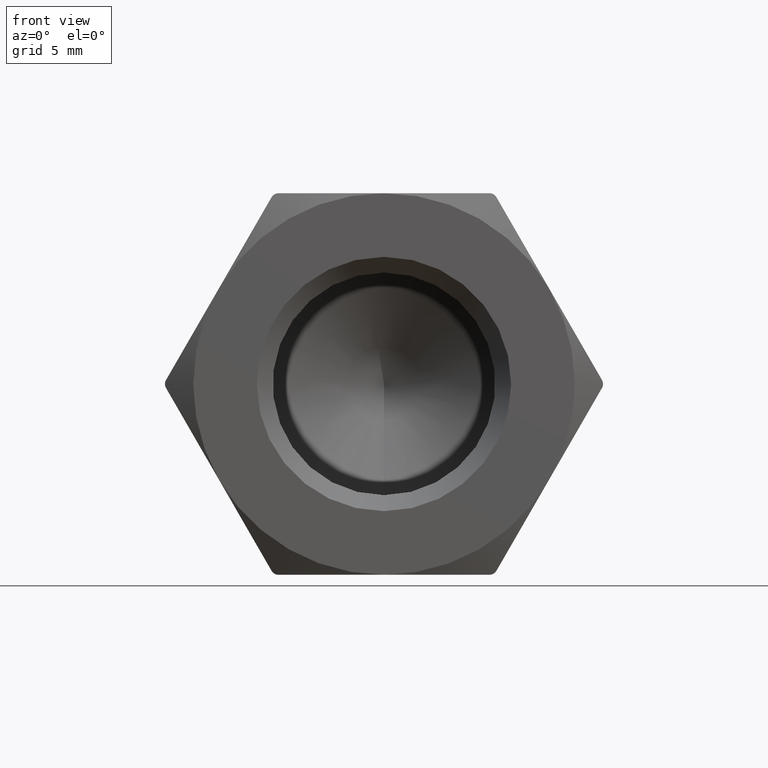
[diagram: clean part render]
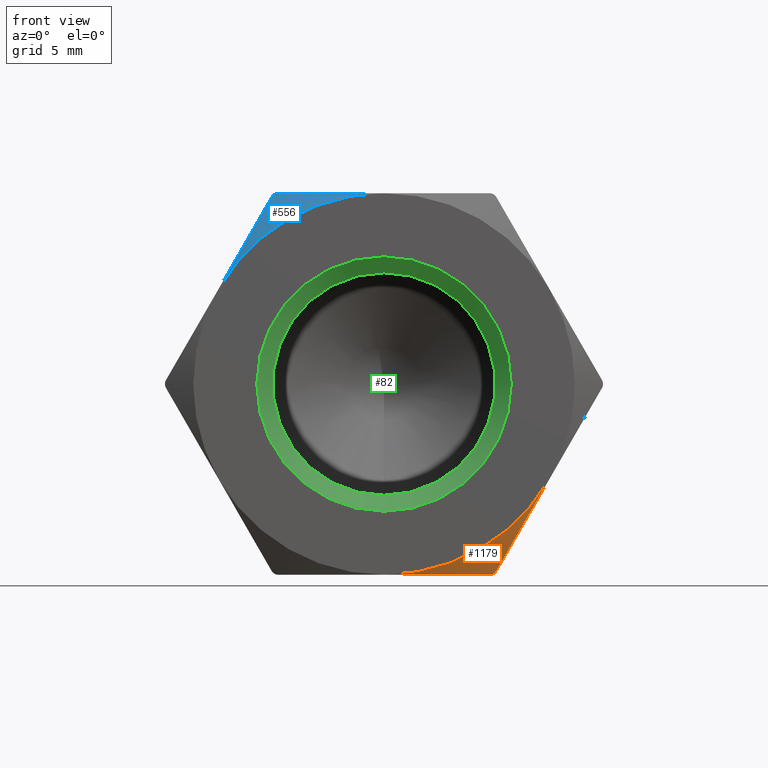
[diagram: same view with three faces highlighted in distinct colors, each labeled with its STEP entity id]
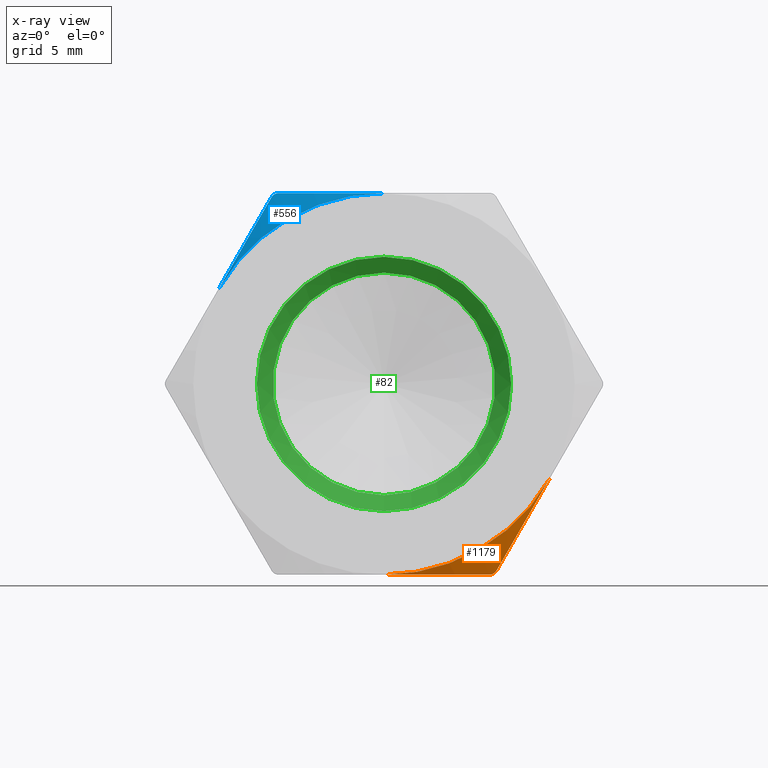
[diagram: x-ray of the same camera — body ghosted, the three highlighted faces saturated]
A machine part, front view with three faces highlighted in distinct colors.
The next image is the same camera in x-ray (body ghosted, the three faces saturated) — at least one of them is partly hidden behind the body in this view.
Their STEP definitions:

[orange] entity #1179 — the highlighted conical surface has half-angle 60 deg.
#12 = CARTESIAN_POINT ( 'NONE',  ( 5.564852187614549800, 0.6893936322554055100, -12.00000000000000500 ) ) ;
#78 = CIRCLE ( 'NONE', #233, 12.00000000000000200 ) ;
#83 = CARTESIAN_POINT ( 'NONE',  ( 7.615867869546742800, 0.6860455640991240900, -10.80892990621369200 ) ) ;
#130 = CARTESIAN_POINT ( 'NONE',  ( 7.072540797572896700, 0.9897791165376161900, -11.75000000000002100 ) ) ;
#193 = CARTESIAN_POINT ( 'NONE',  ( 7.029609111663672700, 1.013779013001466800, -11.82435986124937700 ) ) ;
#194 = CARTESIAN_POINT ( 'NONE',  ( 7.072540797572896700, 0.9897791165376161900, -11.75000000000002100 ) ) ;
#230 = CARTESIAN_POINT ( 'NONE',  ( 4.476170215682657300, 0.4405454564966949100, -12.00000000000000200 ) ) ;
#233 = AXIS2_PLACEMENT_3D ( 'NONE', #584, #1329, #1203 ) ;
#235 = DIRECTION ( 'NONE',  ( -0.0000000000000000000, 1.000000000000000000, -0.0000000000000000000 ) ) ;
#272 = B_SPLINE_CURVE_WITH_KNOTS ( 'NONE', 3,
 ( #194, #83, #1140, #927, #299, #513 ),
 .UNSPECIFIED., .F., .F.,
 ( 4, 2, 4 ),
 ( 0.0002976420579480877700, 0.003654043546377617200, 0.007010445034807147300 ),
 .UNSPECIFIED. ) ;
#285 = CARTESIAN_POINT ( 'NONE',  ( 6.725359445022282200, 1.013770062314893500, -12.00000000000000200 ) ) ;
#299 = CARTESIAN_POINT ( 'NONE',  ( 9.827162648512390000, -1.008646833590420800E-014, -6.978854998533403600 ) ) ;
#320 = CARTESIAN_POINT ( 'NONE',  ( 2.250940326994609600, 0.1134534228778148600, -12.00000000000000000 ) ) ;
#340 = ORIENTED_EDGE ( 'NONE', *, *, #408, .T. ) ;
#380 = CARTESIAN_POINT ( 'NONE',  ( 10.39230484541326400, 0.0000000000000000000, -6.000000000000004400 ) ) ;
#395 = ORIENTED_EDGE ( 'NONE', *, *, #705, .F. ) ;
#399 = CARTESIAN_POINT ( 'NONE',  ( 6.639528095680694800, 0.9897791165376106400, -12.00000000000000000 ) ) ;
#408 = EDGE_CURVE ( 'NONE', #769, #1208, #539, .T. ) ;
#477 = ORIENTED_EDGE ( 'NONE', *, *, #761, .T. ) ;
#513 = CARTESIAN_POINT ( 'NONE',  ( 10.39230484541326400, 0.0000000000000000000, -6.000000000000004400 ) ) ;
#516 = VERTEX_POINT ( 'NONE', #130 ) ;
#518 = B_SPLINE_CURVE_WITH_KNOTS ( 'NONE', 3,
 ( #399, #285, #604, #1031, #193, #1034 ),
 .UNSPECIFIED., .F., .F.,
 ( 4, 2, 4 ),
 ( 3.529906531158615100E-018, 0.0002638430375139575900, 0.0005276860750279117000 ),
 .UNSPECIFIED. ) ;
#539 = B_SPLINE_CURVE_WITH_KNOTS ( 'NONE', 3,
 ( #648, #751, #1164, #320, #737, #230, #12, #1158 ),
 .UNSPECIFIED., .F., .F.,
 ( 4, 2, 2, 4 ),
 ( 0.01936970057594182200, 0.02104774807343688700, 0.02272579557093195500, 0.02608189056592208300 ),
 .UNSPECIFIED. ) ;
#584 = CARTESIAN_POINT ( 'NONE',  ( 0.0000000000000000000, 0.0000000000000000000, 0.0000000000000000000 ) ) ;
#604 = CARTESIAN_POINT ( 'NONE',  ( 6.812782701786536800, 1.027094147785106800, -11.97722948395740000 ) ) ;
#630 = VERTEX_POINT ( 'NONE', #380 ) ;
#648 = CARTESIAN_POINT ( 'NONE',  ( -1.502314598737160000E-015, 0.0000000000000000000, -12.00000000000000200 ) ) ;
#705 = EDGE_CURVE ( 'NONE', #769, #630, #78, .T. ) ;
#737 = CARTESIAN_POINT ( 'NONE',  ( 2.812232842606247700, 0.1810271902809779100, -12.00000000000000200 ) ) ;
#751 = CARTESIAN_POINT ( 'NONE',  ( 0.5605972413833048000, -1.554023113895890100E-015, -12.00000000000000200 ) ) ;
#758 = CARTESIAN_POINT ( 'NONE',  ( 0.0000000000000000000, 1.071796769724475000, 0.0000000000000000000 ) ) ;
#761 = EDGE_CURVE ( 'NONE', #1208, #516, #518, .T. ) ;
#769 = VERTEX_POINT ( 'NONE', #890 ) ;
#841 = CONICAL_SURFACE ( 'NONE', #1018, 13.85640646055101900, 1.047197551196603800 ) ;
#864 = DIRECTION ( 'NONE',  ( 0.0000000000000000000, 0.0000000000000000000, -1.000000000000000000 ) ) ;
#869 = CARTESIAN_POINT ( 'NONE',  ( 6.639528095680694800, 0.9897791165376106400, -12.00000000000000000 ) ) ;
#876 = EDGE_LOOP ( 'NONE', ( #340, #477, #1293, #395 ) ) ;
#890 = CARTESIAN_POINT ( 'NONE',  ( -1.502314598737160000E-015, 0.0000000000000000000, -12.00000000000000200 ) ) ;
#927 = CARTESIAN_POINT ( 'NONE',  ( 9.268740651451430800, 0.09356582542160188400, -7.946070269507060000 ) ) ;
#1006 = FACE_OUTER_BOUND ( 'NONE', #876, .T. ) ;
#1018 = AXIS2_PLACEMENT_3D ( 'NONE', #758, #235, #864 ) ;
#1031 = CARTESIAN_POINT ( 'NONE',  ( 6.965490637025080600, 1.027182766975820400, -11.88924742842495300 ) ) ;
#1034 = CARTESIAN_POINT ( 'NONE',  ( 7.072540797572896700, 0.9897791165376161900, -11.75000000000002100 ) ) ;
#1140 = CARTESIAN_POINT ( 'NONE',  ( 8.163129901979239400, 0.4370987489728677700, -9.861044260987201300 ) ) ;
#1158 = CARTESIAN_POINT ( 'NONE',  ( 6.639528095680694800, 0.9897791165376106400, -12.00000000000000000 ) ) ;
#1164 = CARTESIAN_POINT ( 'NONE',  ( 1.122912357192196000, 0.02279154430987167700, -12.00000000000000000 ) ) ;
#1179 = ADVANCED_FACE ( 'NONE', ( #1006 ), #841, .T. ) ;
#1203 = DIRECTION ( 'NONE',  ( 0.0000000000000000000, 0.0000000000000000000, -1.000000000000000000 ) ) ;
#1208 = VERTEX_POINT ( 'NONE', #869 ) ;
#1293 = ORIENTED_EDGE ( 'NONE', *, *, #1366, .T. ) ;
#1329 = DIRECTION ( 'NONE',  ( 0.0000000000000000000, -1.000000000000000000, 0.0000000000000000000 ) ) ;
#1366 = EDGE_CURVE ( 'NONE', #516, #630, #272, .T. ) ;

[blue] entity #556 — the highlighted conical surface has half-angle 60 deg.
#46 = ORIENTED_EDGE ( 'NONE', *, *, #898, .T. ) ;
#54 = EDGE_CURVE ( 'NONE', #724, #326, #1197, .T. ) ;
#100 = B_SPLINE_CURVE_WITH_KNOTS ( 'NONE', 3,
 ( #552, #109, #1064, #1275, #453, #229 ),
 .UNSPECIFIED., .F., .F.,
 ( 4, 2, 4 ),
 ( 0.01207366422126375300, 0.01542013120109691000, 0.01876659818093006500 ),
 .UNSPECIFIED. ) ;
#109 = CARTESIAN_POINT ( 'NONE',  ( -1.120843460520680700, -1.067261513540418000E-015, 11.99999999999999800 ) ) ;
#116 = CIRCLE ( 'NONE', #1048, 12.00000000000000200 ) ;
#138 = CARTESIAN_POINT ( 'NONE',  ( 0.0000000000000000000, 1.071796769724475000, 0.0000000000000000000 ) ) ;
#229 = CARTESIAN_POINT ( 'NONE',  ( -6.639528095680755200, 0.9897791165375797700, 12.00000000000000000 ) ) ;
#242 = EDGE_LOOP ( 'NONE', ( #1242, #577, #257, #46 ) ) ;
#246 = DIRECTION ( 'NONE',  ( 0.0000000000000000000, 0.0000000000000000000, -1.000000000000000000 ) ) ;
#257 = ORIENTED_EDGE ( 'NONE', *, *, #779, .T. ) ;
#326 = VERTEX_POINT ( 'NONE', #808 ) ;
#329 = CARTESIAN_POINT ( 'NONE',  ( -6.965490637025100200, 1.027182766975817800, 11.88924742842493700 ) ) ;
#379 = VERTEX_POINT ( 'NONE', #411 ) ;
#405 = CARTESIAN_POINT ( 'NONE',  ( -9.268740651451430800, 0.09356582542160302200, 7.946070269507060000 ) ) ;
#410 = VERTEX_POINT ( 'NONE', #1327 ) ;
#411 = CARTESIAN_POINT ( 'NONE',  ( 0.0000000000000000000, 0.0000000000000000000, 12.00000000000000000 ) ) ;
#453 = CARTESIAN_POINT ( 'NONE',  ( -5.557285300470621100, 0.6872785917653089200, 12.00000000000000200 ) ) ;
#549 = CARTESIAN_POINT ( 'NONE',  ( -7.029609111663681600, 1.013779013001464800, 11.82435986124936600 ) ) ;
#552 = CARTESIAN_POINT ( 'NONE',  ( 0.0000000000000000000, 0.0000000000000000000, 12.00000000000000000 ) ) ;
#556 = ADVANCED_FACE ( 'NONE', ( #907 ), #937, .T. ) ;
#577 = ORIENTED_EDGE ( 'NONE', *, *, #54, .T. ) ;
#637 = DIRECTION ( 'NONE',  ( 0.0000000000000000000, 0.0000000000000000000, 1.000000000000000000 ) ) ;
#706 = CARTESIAN_POINT ( 'NONE',  ( -9.827162648512391700, -9.822194056360866700E-015, 6.978854998533401000 ) ) ;
#717 = DIRECTION ( 'NONE',  ( 0.0000000000000000000, 1.000000000000000000, 0.0000000000000000000 ) ) ;
#724 = VERTEX_POINT ( 'NONE', #804 ) ;
#739 = CARTESIAN_POINT ( 'NONE',  ( -6.639528095680755200, 0.9897791165375797700, 12.00000000000000000 ) ) ;
#771 = AXIS2_PLACEMENT_3D ( 'NONE', #138, #870, #246 ) ;
#779 = EDGE_CURVE ( 'NONE', #326, #410, #1134, .T. ) ;
#804 = CARTESIAN_POINT ( 'NONE',  ( -6.639528095680755200, 0.9897791165375797700, 12.00000000000000000 ) ) ;
#808 = CARTESIAN_POINT ( 'NONE',  ( -7.072540797572901100, 0.9897791165376173000, 11.75000000000002100 ) ) ;
#870 = DIRECTION ( 'NONE',  ( -0.0000000000000000000, 1.000000000000000000, -0.0000000000000000000 ) ) ;
#898 = EDGE_CURVE ( 'NONE', #410, #379, #116, .T. ) ;
#907 = FACE_OUTER_BOUND ( 'NONE', #242, .T. ) ;
#917 = CARTESIAN_POINT ( 'NONE',  ( 0.0000000000000000000, 0.0000000000000000000, 0.0000000000000000000 ) ) ;
#924 = CARTESIAN_POINT ( 'NONE',  ( -7.615867869546747200, 0.6860455640991252000, 10.80892990621369200 ) ) ;
#937 = CONICAL_SURFACE ( 'NONE', #771, 13.85640646055101900, 1.047197551196603800 ) ;
#1019 = CARTESIAN_POINT ( 'NONE',  ( -7.072540797572901100, 0.9897791165376173000, 11.75000000000002100 ) ) ;
#1047 = CARTESIAN_POINT ( 'NONE',  ( -6.725359445022284900, 1.013770062315025000, 11.99999999999999800 ) ) ;
#1048 = AXIS2_PLACEMENT_3D ( 'NONE', #917, #717, #637 ) ;
#1064 = CARTESIAN_POINT ( 'NONE',  ( -2.234743191283539600, 0.09212450112426455500, 12.00000000000000200 ) ) ;
#1112 = EDGE_CURVE ( 'NONE', #379, #724, #100, .T. ) ;
#1134 = B_SPLINE_CURVE_WITH_KNOTS ( 'NONE', 3,
 ( #1019, #924, #1349, #405, #706, #1344 ),
 .UNSPECIFIED., .F., .F.,
 ( 4, 2, 4 ),
 ( 0.0002976420579480877700, 0.003654043546377617200, 0.007010445034807147300 ),
 .UNSPECIFIED. ) ;
#1166 = CARTESIAN_POINT ( 'NONE',  ( -7.072540797572901100, 0.9897791165376173000, 11.75000000000002100 ) ) ;
#1197 = B_SPLINE_CURVE_WITH_KNOTS ( 'NONE', 3,
 ( #739, #1047, #1362, #329, #549, #1166 ),
 .UNSPECIFIED., .F., .F.,
 ( 4, 2, 4 ),
 ( 2.764779315700833900E-017, 0.0002638430375139681600, 0.0005276860750279086700 ),
 .UNSPECIFIED. ) ;
#1242 = ORIENTED_EDGE ( 'NONE', *, *, #1112, .T. ) ;
#1275 = CARTESIAN_POINT ( 'NONE',  ( -4.450555589881888700, 0.4354093861970753100, 12.00000000000000200 ) ) ;
#1327 = CARTESIAN_POINT ( 'NONE',  ( -10.39230484541326600, 0.0000000000000000000, 6.000000000000002700 ) ) ;
#1344 = CARTESIAN_POINT ( 'NONE',  ( -10.39230484541326600, 0.0000000000000000000, 6.000000000000002700 ) ) ;
#1349 = CARTESIAN_POINT ( 'NONE',  ( -8.163129901979241200, 0.4370987489728692700, 9.861044260987201300 ) ) ;
#1362 = CARTESIAN_POINT ( 'NONE',  ( -6.812782701786577600, 1.027094147785110300, 11.97722948395738200 ) ) ;

[green] entity #82 — the highlighted conical surface has half-angle 45 deg.
#42 = VERTEX_POINT ( 'NONE', #524 ) ;
#67 = ORIENTED_EDGE ( 'NONE', *, *, #1086, .F. ) ;
#82 = ADVANCED_FACE ( 'NONE', ( #615, #290 ), #167, .F. ) ;
#107 = CARTESIAN_POINT ( 'NONE',  ( 0.0000000000000000000, 1.000000000000006900, 0.0000000000000000000 ) ) ;
#167 = CONICAL_SURFACE ( 'NONE', #525, 6.999999999999997300, 0.7853981633974496100 ) ;
#290 = FACE_BOUND ( 'NONE', #307, .T. ) ;
#307 = EDGE_LOOP ( 'NONE', ( #1357 ) ) ;
#336 = DIRECTION ( 'NONE',  ( 0.0000000000000000000, 0.0000000000000000000, 1.000000000000000000 ) ) ;
#353 = AXIS2_PLACEMENT_3D ( 'NONE', #1133, #519, #1241 ) ;
#401 = AXIS2_PLACEMENT_3D ( 'NONE', #1186, #1174, #336 ) ;
#439 = DIRECTION ( 'NONE',  ( 0.0000000000000000000, -1.000000000000000000, 0.0000000000000000000 ) ) ;
#519 = DIRECTION ( 'NONE',  ( 0.0000000000000000000, -1.000000000000000000, 0.0000000000000000000 ) ) ;
#524 = CARTESIAN_POINT ( 'NONE',  ( 0.0000000000000000000, 0.0000000000000000000, 8.000000000000007100 ) ) ;
#525 = AXIS2_PLACEMENT_3D ( 'NONE', #107, #439, #1301 ) ;
#615 = FACE_OUTER_BOUND ( 'NONE', #1156, .T. ) ;
#618 = CARTESIAN_POINT ( 'NONE',  ( 0.0000000000000000000, 1.000000000000006900, 6.999999999999997300 ) ) ;
#891 = EDGE_CURVE ( 'NONE', #920, #920, #1121, .T. ) ;
#920 = VERTEX_POINT ( 'NONE', #618 ) ;
#1086 = EDGE_CURVE ( 'NONE', #42, #42, #1202, .T. ) ;
#1121 = CIRCLE ( 'NONE', #353, 6.999999999999997300 ) ;
#1133 = CARTESIAN_POINT ( 'NONE',  ( 0.0000000000000000000, 1.000000000000006900, 0.0000000000000000000 ) ) ;
#1156 = EDGE_LOOP ( 'NONE', ( #67 ) ) ;
#1174 = DIRECTION ( 'NONE',  ( 0.0000000000000000000, 1.000000000000000000, 0.0000000000000000000 ) ) ;
#1186 = CARTESIAN_POINT ( 'NONE',  ( 0.0000000000000000000, 0.0000000000000000000, 0.0000000000000000000 ) ) ;
#1202 = CIRCLE ( 'NONE', #401, 8.000000000000007100 ) ;
#1241 = DIRECTION ( 'NONE',  ( 0.0000000000000000000, 0.0000000000000000000, 1.000000000000000000 ) ) ;
#1301 = DIRECTION ( 'NONE',  ( 0.0000000000000000000, 0.0000000000000000000, -1.000000000000000000 ) ) ;
#1357 = ORIENTED_EDGE ( 'NONE', *, *, #891, .F. ) ;